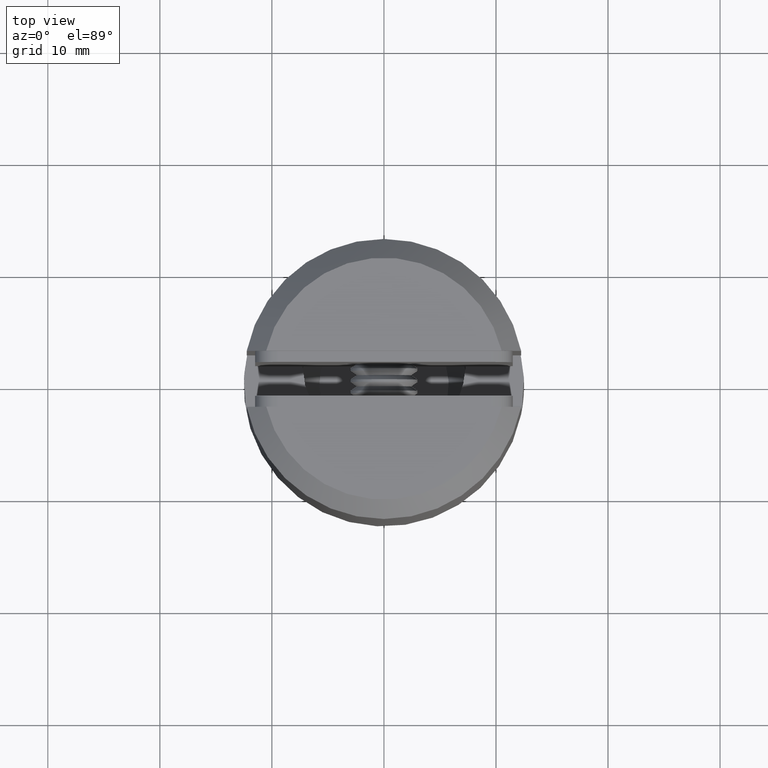
[diagram: clean part render]
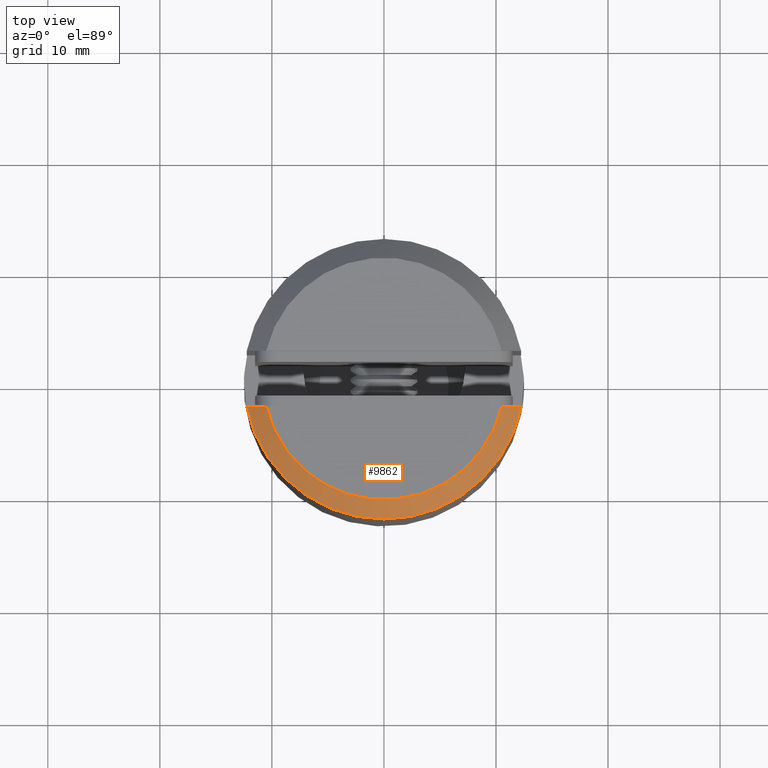
[diagram: same view with one face highlighted and labeled with its STEP entity id]
A machine part, top view. The second image highlights one B-rep face of the part: STEP entity #9862.
In plain terms, the highlighted conical surface has half-angle 45 deg.
Its self-contained STEP definition (entity closure, byte-faithful):
#980 = ORIENTED_EDGE ( 'NONE', *, *, #17291, .F. ) ;
#1719 = CARTESIAN_POINT ( 'NONE',  ( -11.66812187511647636, -2.500000000000003109, 38.46762205974326321 ) ) ;
#2399 = DIRECTION ( 'NONE',  ( 0.000000000000000000, 8.839393595184493222E-19, -1.000000000000000000 ) ) ;
#2839 = B_SPLINE_CURVE_WITH_KNOTS ( 'NONE', 3,
 ( #18728, #1719, #18583, #20305 ),
 .UNSPECIFIED., .F., .F.,
 ( 4, 4 ),
 ( 1.734723475976807094E-18, 0.002433172722957552270 ),
 .UNSPECIFIED. ) ;
#4009 = EDGE_CURVE ( 'NONE', #4196, #14105, #12901, .T. ) ;
#4196 = VERTEX_POINT ( 'NONE', #8384 ) ;
#5043 = CARTESIAN_POINT ( 'NONE',  ( -12.24744871391589207, -2.500000000000003997, 37.89999999999999858 ) ) ;
#5279 = EDGE_CURVE ( 'NONE', #10765, #4196, #2839, .T. ) ;
#5509 = CARTESIAN_POINT ( 'NONE',  ( 0.000000000000000000, -2.024221133297247584E-17, 37.89999999999999858 ) ) ;
#6199 = CARTESIAN_POINT ( 'NONE',  ( 12.24744871391589207, -2.500000000000003997, 37.89999999999999858 ) ) ;
#7268 = AXIS2_PLACEMENT_3D ( 'NONE', #21490, #17955, #11218 ) ;
#7327 = EDGE_LOOP ( 'NONE', ( #10622, #980, #10683, #15821 ) ) ;
#7717 = DIRECTION ( 'NONE',  ( -1.000000000000000000, 0.000000000000000000, 0.000000000000000000 ) ) ;
#7807 = AXIS2_PLACEMENT_3D ( 'NONE', #5509, #2399, #14407 ) ;
#7947 = B_SPLINE_CURVE_WITH_KNOTS ( 'NONE', 3,
 ( #19676, #22002, #11489, #20260 ),
 .UNSPECIFIED., .F., .F.,
 ( 4, 4 ),
 ( 0.000000000000000000, 0.002433172722957547499 ),
 .UNSPECIFIED. ) ;
#8384 = CARTESIAN_POINT ( 'NONE',  ( -10.50666455160723167, -2.500000000000003997, 39.59999999999999432 ) ) ;
#9002 = CONICAL_SURFACE ( 'NONE', #7268, 10.80000000000000604, 0.7853981633974467247 ) ;
#9532 = CARTESIAN_POINT ( 'NONE',  ( 0.000000000000000000, -2.174490824415384115E-17, 39.59999999999999432 ) ) ;
#9862 = ADVANCED_FACE ( 'NONE', ( #11919 ), #9002, .T. ) ;
#10622 = ORIENTED_EDGE ( 'NONE', *, *, #5279, .F. ) ;
#10683 = ORIENTED_EDGE ( 'NONE', *, *, #17856, .F. ) ;
#10750 = AXIS2_PLACEMENT_3D ( 'NONE', #9532, #11380, #7717 ) ;
#10765 = VERTEX_POINT ( 'NONE', #5043 ) ;
#11218 = DIRECTION ( 'NONE',  ( 0.000000000000000000, 1.000000000000000000, 0.000000000000000000 ) ) ;
#11380 = DIRECTION ( 'NONE',  ( 0.000000000000000000, 0.000000000000000000, 1.000000000000000000 ) ) ;
#11489 = CARTESIAN_POINT ( 'NONE',  ( 11.66812187511647636, -2.500000000000003997, 38.46762205974326321 ) ) ;
#11919 = FACE_OUTER_BOUND ( 'NONE', #7327, .T. ) ;
#12901 = CIRCLE ( 'NONE', #10750, 10.80000000000000604 ) ;
#13818 = CIRCLE ( 'NONE', #7807, 12.50000000000000000 ) ;
#14105 = VERTEX_POINT ( 'NONE', #16061 ) ;
#14407 = DIRECTION ( 'NONE',  ( 0.000000000000000000, 1.000000000000000000, 0.000000000000000000 ) ) ;
#15821 = ORIENTED_EDGE ( 'NONE', *, *, #4009, .F. ) ;
#16061 = CARTESIAN_POINT ( 'NONE',  ( 10.50666455160723878, -2.500000000000003997, 39.59999999999999432 ) ) ;
#17291 = EDGE_CURVE ( 'NONE', #19556, #10765, #13818, .T. ) ;
#17856 = EDGE_CURVE ( 'NONE', #14105, #19556, #7947, .T. ) ;
#17955 = DIRECTION ( 'NONE',  ( 0.000000000000000000, 8.839393595184493222E-19, -1.000000000000000000 ) ) ;
#18583 = CARTESIAN_POINT ( 'NONE',  ( -11.08800938267508762, -2.500000000000003997, 39.03444489547771212 ) ) ;
#18728 = CARTESIAN_POINT ( 'NONE',  ( -12.24744871391589207, -2.500000000000003997, 37.89999999999999858 ) ) ;
#19556 = VERTEX_POINT ( 'NONE', #6199 ) ;
#19676 = CARTESIAN_POINT ( 'NONE',  ( 10.50666455160723878, -2.500000000000003997, 39.59999999999999432 ) ) ;
#20260 = CARTESIAN_POINT ( 'NONE',  ( 12.24744871391589207, -2.500000000000003997, 37.89999999999999858 ) ) ;
#20305 = CARTESIAN_POINT ( 'NONE',  ( -10.50666455160723167, -2.500000000000003997, 39.59999999999999432 ) ) ;
#21490 = CARTESIAN_POINT ( 'NONE',  ( 0.000000000000000000, -2.174490824415384115E-17, 39.59999999999999432 ) ) ;
#22002 = CARTESIAN_POINT ( 'NONE',  ( 11.08800938267508585, -2.500000000000003997, 39.03444489547771212 ) ) ;